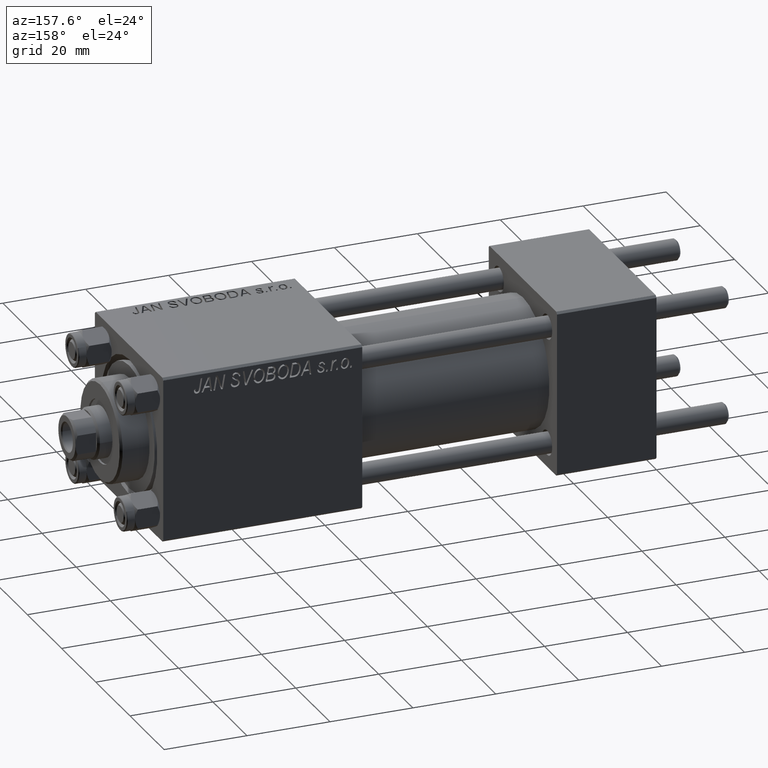
[diagram: clean part render]
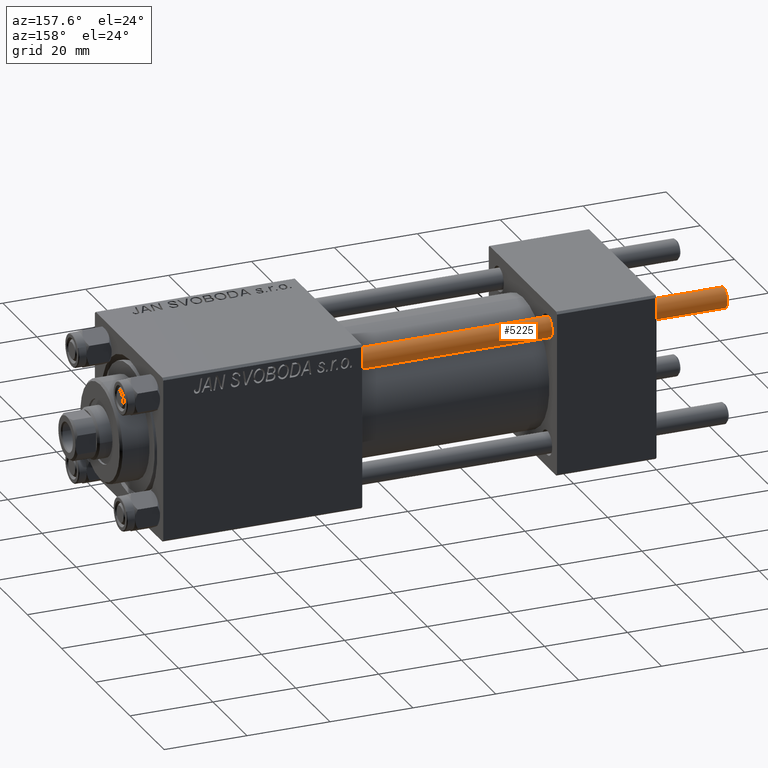
[diagram: same view with one face highlighted and labeled with its STEP entity id]
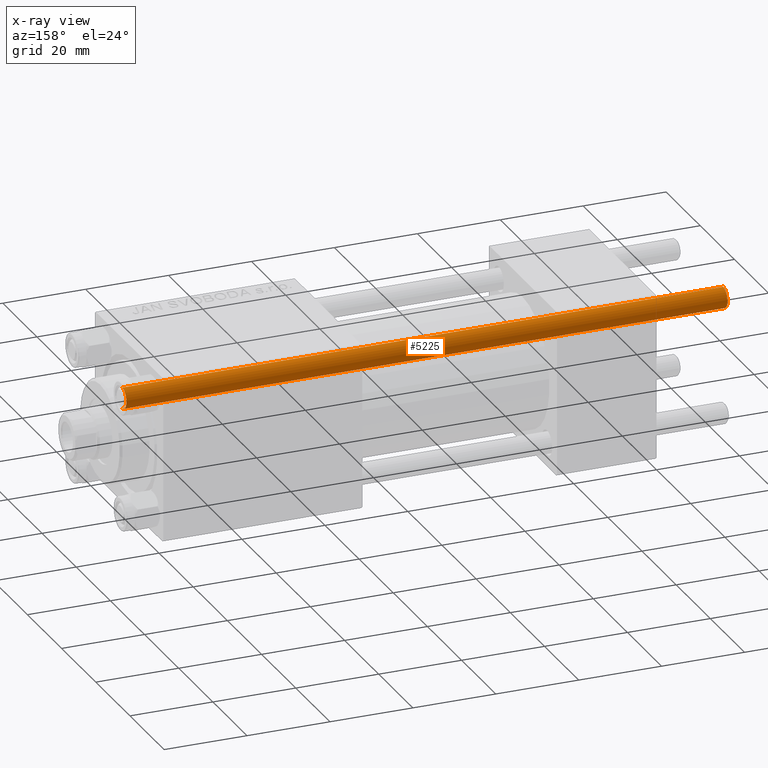
[diagram: x-ray of the same camera — body ghosted, the highlighted face saturated]
A machine part, auxiliary view. The second image highlights one B-rep face of the part: STEP entity #5225.
The next image is the same camera in x-ray: the body ghosted, the highlighted face saturated — about 0% of this face is hidden behind the body in this view.
In plain terms, the highlighted cylindrical surface (edge-blend (fillet) strip) has radius 2.5 mm, axis along (-1, -0, -0).
Its self-contained STEP definition (entity closure, byte-faithful):
#2 = CIRCLE ( 'NONE', #46662, 2.500000000000000000 ) ;
#260 = DIRECTION ( 'NONE',  ( -1.000000000000000000, 0.000000000000000000, 0.000000000000000000 ) ) ;
#632 = AXIS2_PLACEMENT_3D ( 'NONE', #15873, #21073, #260 ) ;
#1901 = CARTESIAN_POINT ( 'NONE',  ( -2.500000000000000000, 0.000000000000000000, 146.0000000000000000 ) ) ;
#3039 = CARTESIAN_POINT ( 'NONE',  ( -2.500000000000000000, 0.000000000000000000, 0.5000000000000559552 ) ) ;
#5133 = CARTESIAN_POINT ( 'NONE',  ( -2.500000000000000000, 0.000000000000000000, 145.5000000000000284 ) ) ;
#5225 = ADVANCED_FACE ( 'NONE', ( #24849 ), #13284, .T. ) ;
#6275 = CIRCLE ( 'NONE', #34430, 2.500000000000000000 ) ;
#6999 = EDGE_CURVE ( 'NONE', #49422, #28124, #47469, .T. ) ;
#7383 = CARTESIAN_POINT ( 'NONE',  ( 0.000000000000000000, 0.000000000000000000, 0.5000000000000559552 ) ) ;
#9534 = EDGE_CURVE ( 'NONE', #46062, #28124, #6275, .T. ) ;
#13284 = CYLINDRICAL_SURFACE ( 'NONE', #632, 2.500000000000000000 ) ;
#13302 = CARTESIAN_POINT ( 'NONE',  ( 0.000000000000000000, 0.000000000000000000, 145.5000000000000284 ) ) ;
#15873 = CARTESIAN_POINT ( 'NONE',  ( 0.000000000000000000, 0.000000000000000000, 146.0000000000000000 ) ) ;
#16272 = DIRECTION ( 'NONE',  ( -0.000000000000000000, -0.000000000000000000, -1.000000000000000000 ) ) ;
#19376 = VERTEX_POINT ( 'NONE', #22849 ) ;
#21073 = DIRECTION ( 'NONE',  ( -0.000000000000000000, -0.000000000000000000, -1.000000000000000000 ) ) ;
#22849 = CARTESIAN_POINT ( 'NONE',  ( 2.500000000000000000, 3.061616997868383141E-16, 145.5000000000000284 ) ) ;
#24849 = FACE_OUTER_BOUND ( 'NONE', #29422, .T. ) ;
#27891 = ORIENTED_EDGE ( 'NONE', *, *, #38378, .T. ) ;
#28124 = VERTEX_POINT ( 'NONE', #3039 ) ;
#28197 = ORIENTED_EDGE ( 'NONE', *, *, #33793, .T. ) ;
#29422 = EDGE_LOOP ( 'NONE', ( #27891, #28197, #33195, #34279 ) ) ;
#30441 = VECTOR ( 'NONE', #16272, 1000.000000000000000 ) ;
#30801 = CARTESIAN_POINT ( 'NONE',  ( 2.500000000000000000, 3.061616997868383141E-16, 0.5000000000000559552 ) ) ;
#32039 = DIRECTION ( 'NONE',  ( -0.000000000000000000, -0.000000000000000000, -1.000000000000000000 ) ) ;
#32285 = CARTESIAN_POINT ( 'NONE',  ( 2.500000000000000000, 3.061616997868383141E-16, 146.0000000000000000 ) ) ;
#33157 = DIRECTION ( 'NONE',  ( 0.000000000000000000, 0.000000000000000000, -1.000000000000000000 ) ) ;
#33195 = ORIENTED_EDGE ( 'NONE', *, *, #9534, .T. ) ;
#33793 = EDGE_CURVE ( 'NONE', #19376, #46062, #43377, .T. ) ;
#34279 = ORIENTED_EDGE ( 'NONE', *, *, #6999, .F. ) ;
#34430 = AXIS2_PLACEMENT_3D ( 'NONE', #7383, #49420, #46153 ) ;
#36058 = VECTOR ( 'NONE', #32039, 1000.000000000000000 ) ;
#38378 = EDGE_CURVE ( 'NONE', #49422, #19376, #2, .T. ) ;
#43377 = LINE ( 'NONE', #32285, #36058 ) ;
#44496 = DIRECTION ( 'NONE',  ( 1.000000000000000000, 0.000000000000000000, 0.000000000000000000 ) ) ;
#46062 = VERTEX_POINT ( 'NONE', #30801 ) ;
#46153 = DIRECTION ( 'NONE',  ( 1.000000000000000000, 0.000000000000000000, 0.000000000000000000 ) ) ;
#46662 = AXIS2_PLACEMENT_3D ( 'NONE', #13302, #33157, #44496 ) ;
#47469 = LINE ( 'NONE', #1901, #30441 ) ;
#49420 = DIRECTION ( 'NONE',  ( -0.000000000000000000, -0.000000000000000000, 1.000000000000000000 ) ) ;
#49422 = VERTEX_POINT ( 'NONE', #5133 ) ;